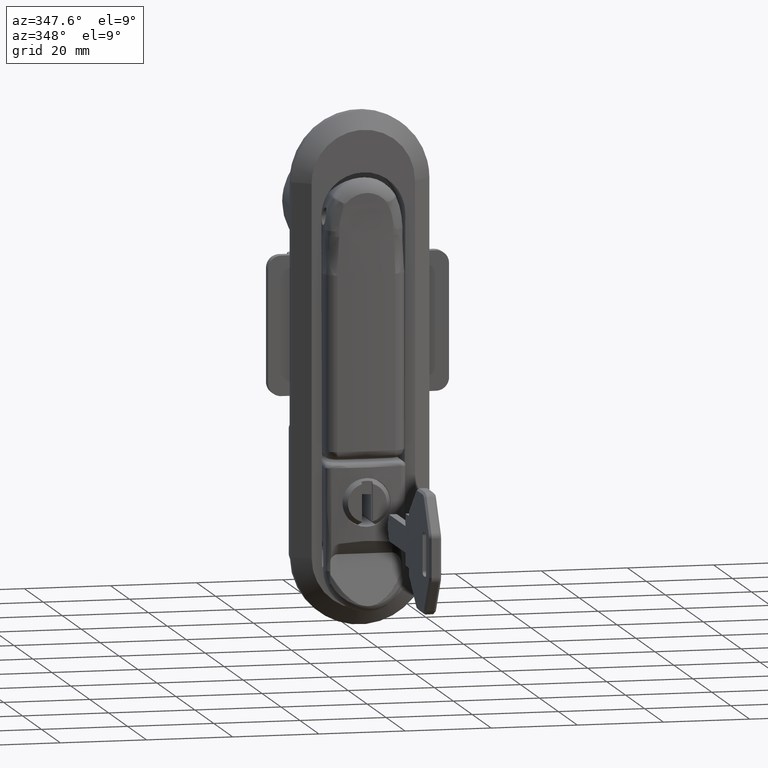
[diagram: clean part render]
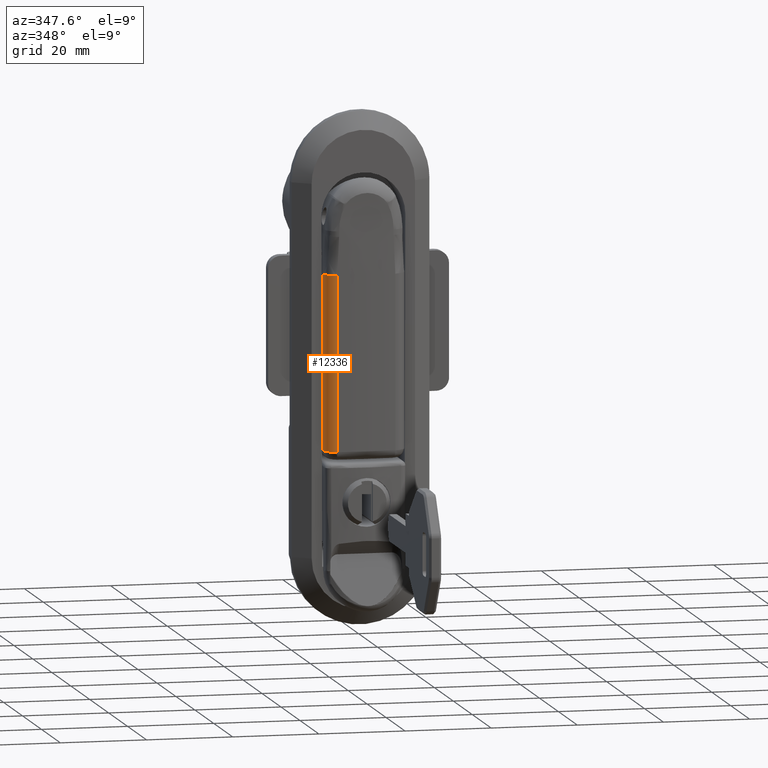
[diagram: same view with one face highlighted and labeled with its STEP entity id]
A machine part, auxiliary view. The second image highlights one B-rep face of the part: STEP entity #12336.
In plain terms, the highlighted face is a freeform B-spline surface patch.
Its self-contained STEP definition (entity closure, byte-faithful):
#12191=CARTESIAN_POINT('',(-8.120591731706769,6.736842106031551,-12.972938571406299));
#12192=VERTEX_POINT('',#12191);
#12260=CARTESIAN_POINT('',(-5.139562145121570,9.400000000623901,-12.972938571405980));
#12261=VERTEX_POINT('',#12260);
#12275=CARTESIAN_POINT('',(-5.139562145121570,9.400000000623901,-12.972938571405980));
#12276=CARTESIAN_POINT('',(-7.819667609276022,9.400000000623901,-12.972938571405972));
#12277=CARTESIAN_POINT('',(-8.120591731706769,6.736842106031551,-12.972938571406299));
#12285=(BOUNDED_CURVE()B_SPLINE_CURVE(2,(#12275,#12276,#12277),.UNSPECIFIED.,.F.,.U.)CURVE()GEOMETRIC_REPRESENTATION_ITEM()QUASI_UNIFORM_CURVE()RATIONAL_B_SPLINE_CURVE((1.0,0.745748181962954,1.0))REPRESENTATION_ITEM(''));
#12286=EDGE_CURVE('',#12261,#12192,#12285,.T.);
#12292=CARTESIAN_POINT('',(-8.130314146321004,6.635377287913503,-54.513176535735873));
#12293=CARTESIAN_POINT('',(-8.130314146321004,6.635377287913503,-11.934432622297731));
#12294=CARTESIAN_POINT('',(-7.897805159385200,9.589684078920445,-54.513176535735873));
#12295=CARTESIAN_POINT('',(-7.897805159385200,9.589684078920445,-11.934432622297733));
#12296=CARTESIAN_POINT('',(-4.940869802309671,9.393412994773374,-54.513176535735866));
#12297=CARTESIAN_POINT('',(-4.940869802309671,9.393412994773374,-11.934432622297733));
#12305=(BOUNDED_SURFACE()B_SPLINE_SURFACE(1,2,((#12292,#12294,#12296),(#12293,#12295,#12297)),.UNSPECIFIED.,.F.,.F.,.U.)B_SPLINE_SURFACE_WITH_KNOTS((2,2),(3,3),(0.0,42.578743913438132),(0.0,4.927515858019972),.UNSPECIFIED.)GEOMETRIC_REPRESENTATION_ITEM()RATIONAL_B_SPLINE_SURFACE(((1.0,0.709639618103943,0.994978132320068),(1.0,0.709639618103943,0.994978132320068)))REPRESENTATION_ITEM('')SURFACE());
#12306=ORIENTED_EDGE('',*,*,#12286,.F.);
#12307=CARTESIAN_POINT('',(-5.139562145121620,9.400000000628310,-53.500000000020300));
#12308=VERTEX_POINT('',#12307);
#12309=CARTESIAN_POINT('',(-5.139562145121620,9.400000000628310,-53.500000000020300));
#12310=CARTESIAN_POINT('',(-5.139562145121570,9.400000000623901,-12.972938571405980));
#12311=QUASI_UNIFORM_CURVE('',1,(#12309,#12310),.UNSPECIFIED.,.F.,.U.);
#12312=EDGE_CURVE('',#12308,#12261,#12311,.T.);
#12313=ORIENTED_EDGE('',*,*,#12312,.F.);
#12314=CARTESIAN_POINT('',(-8.120591731706760,6.736842106031551,-53.500000000020499));
#12315=VERTEX_POINT('',#12314);
#12316=CARTESIAN_POINT('',(-5.139562145121620,9.400000000628310,-53.500000000020300));
#12317=CARTESIAN_POINT('',(-7.819667609370779,9.400000000729971,-53.500000000020499));
#12318=CARTESIAN_POINT('',(-8.120591731706764,6.736842106031552,-53.500000000020499));
#12326=(BOUNDED_CURVE()B_SPLINE_CURVE(2,(#12316,#12317,#12318),.UNSPECIFIED.,.F.,.U.)CURVE()GEOMETRIC_REPRESENTATION_ITEM()QUASI_UNIFORM_CURVE()RATIONAL_B_SPLINE_CURVE((1.0,0.745748181951251,1.0))REPRESENTATION_ITEM(''));
#12327=EDGE_CURVE('',#12308,#12315,#12326,.T.);
#12328=ORIENTED_EDGE('',*,*,#12327,.T.);
#12329=CARTESIAN_POINT('',(-8.120591731706769,6.736842106031551,-12.972938571406299));
#12330=CARTESIAN_POINT('',(-8.120591731706760,6.736842106031551,-53.500000000020499));
#12331=QUASI_UNIFORM_CURVE('',1,(#12329,#12330),.UNSPECIFIED.,.F.,.U.);
#12332=EDGE_CURVE('',#12192,#12315,#12331,.T.);
#12333=ORIENTED_EDGE('',*,*,#12332,.F.);
#12334=EDGE_LOOP('',(#12306,#12313,#12328,#12333));
#12335=FACE_OUTER_BOUND('',#12334,.T.);
#12336=ADVANCED_FACE('',(#12335),#12305,.T.);